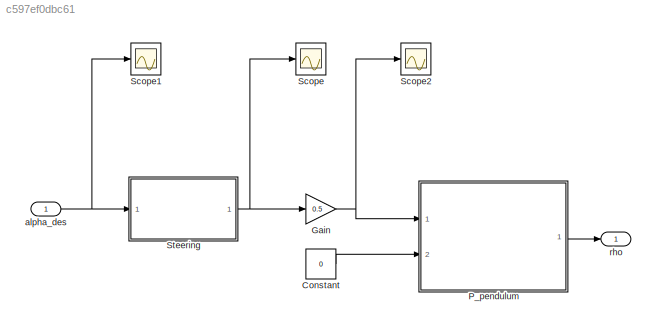
MODEL slx_c597ef0dbc61
KIND model
BLOCK [Constant] Constant
  Value = 0
BLOCK [Gain] Gain
  Gain = 0.5
  OutDataTypeStr = Inherit: Inherit via internal rule
  ParamDataTypeStr = Inherit: Inherit via internal rule
  SaturateOnIntegerOverflow = off
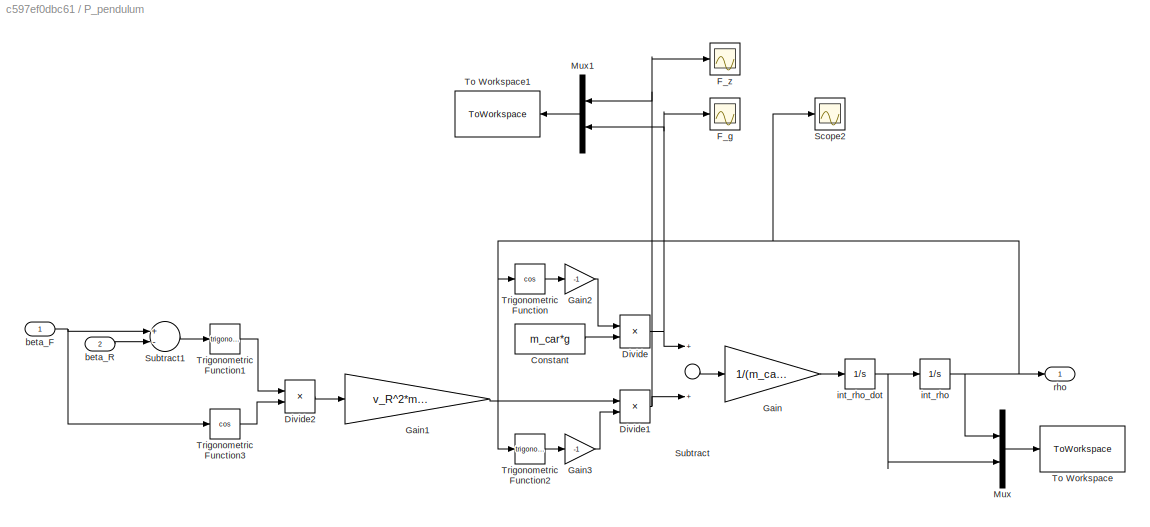
BLOCK [SubSystem] P_pendulum
  FunctionWithSeparateData = off
  MaskHideContents = off
  MinAlgLoopOccurrences = off
  Opaque = off
  Ports = [2, 1]
  PropExecContextOutsideSubsystem = off
  RTWSystemCode = Auto
  RequestExecContextInheritance = off
BLOCK [Constant] P_pendulum/Constant
  Value = m_car*g
BLOCK [Product] P_pendulum/Divide
  InputSameDT = off
  Inputs = **
  OutDataTypeStr = Inherit: Inherit via internal rule
  Ports = [2, 1]
  RndMeth = Floor
  SaturateOnIntegerOverflow = off
BLOCK [Product] P_pendulum/Divide1
  InputSameDT = off
  Inputs = **
  OutDataTypeStr = Inherit: Inherit via internal rule
  Ports = [2, 1]
  RndMeth = Floor
  SaturateOnIntegerOverflow = off
BLOCK [Product] P_pendulum/Divide2
  InputSameDT = off
  Inputs = */
  OutDataTypeStr = Inherit: Inherit via internal rule
  Ports = [2, 1]
  RndMeth = Floor
  SaturateOnIntegerOverflow = off
BLOCK [Scope] P_pendulum/F_g
  DataFormat = StructureWithTime
  Floating = off
  NumInputPorts = 1
  Ports = [1]
  SampleTime = 0
  SaveName = ScopeData2
  ShowLegends = off
BLOCK [Scope] P_pendulum/F_z
  DataFormat = StructureWithTime
  Floating = off
  NumInputPorts = 1
  Ports = [1]
  SampleTime = 0
  SaveName = ScopeData1
  ShowLegends = off
BLOCK [Gain] P_pendulum/Gain
  Gain = 1/(m_car*l_p)
  OutDataTypeStr = Inherit: Inherit via internal rule
  ParamDataTypeStr = Inherit: Inherit via internal rule
  SaturateOnIntegerOverflow = off
BLOCK [Gain] P_pendulum/Gain1
  Gain = v_R^2*m_car/l_w
  OutDataTypeStr = Inherit: Inherit via internal rule
  ParamDataTypeStr = Inherit: Inherit via internal rule
  SaturateOnIntegerOverflow = off
BLOCK [Gain] P_pendulum/Gain2
  Gain = -1
  OutDataTypeStr = Inherit: Inherit via internal rule
  ParamDataTypeStr = Inherit: Inherit via internal rule
  SaturateOnIntegerOverflow = off
BLOCK [Gain] P_pendulum/Gain3
  Gain = -1
  OutDataTypeStr = Inherit: Inherit via internal rule
  ParamDataTypeStr = Inherit: Inherit via internal rule
  SaturateOnIntegerOverflow = off
BLOCK [Mux] P_pendulum/Mux
  DisplayOption = bar
  Inputs = 2
  Ports = [2, 1]
BLOCK [Mux] P_pendulum/Mux1
  DisplayOption = bar
  Inputs = 2
  Ports = [2, 1]
BLOCK [Scope] P_pendulum/Scope2
  DataFormat = StructureWithTime
  Floating = off
  NumInputPorts = 1
  Ports = [1]
  SampleTime = 0
  SaveName = ScopeData3
  ShowLegends = off
BLOCK [Sum] P_pendulum/Subtract
  InputSameDT = off
  OutDataTypeStr = Inherit: Inherit via internal rule
  Ports = [2, 1]
  SaturateOnIntegerOverflow = off
BLOCK [Sum] P_pendulum/Subtract1
  InputSameDT = off
  Inputs = +-
  OutDataTypeStr = Inherit: Inherit via internal rule
  Ports = [2, 1]
  SaturateOnIntegerOverflow = off
BLOCK [ToWorkspace] P_pendulum/To Workspace
  MaxDataPoints = inf
  Ports = [1]
  SampleTime = -1
  SaveFormat = Timeseries
  VariableName = rho
BLOCK [ToWorkspace] P_pendulum/To Workspace1
  MaxDataPoints = inf
  Ports = [1]
  SampleTime = -1
  SaveFormat = Timeseries
  VariableName = forces
BLOCK [Trigonometry] P_pendulum/Trigonometric Function
  Operator = cos
  Ports = [1, 1]
BLOCK [Trigonometry] P_pendulum/Trigonometric Function1
  Ports = [1, 1]
BLOCK [Trigonometry] P_pendulum/Trigonometric Function2
  Ports = [1, 1]
BLOCK [Trigonometry] P_pendulum/Trigonometric Function3
  Operator = cos
  Ports = [1, 1]
BLOCK [Inport] P_pendulum/beta_F
  IconDisplay = Port number
BLOCK [Inport] P_pendulum/beta_R
  IconDisplay = Port number
  Port = 2
BLOCK [Integrator] P_pendulum/int_rho
  ContinuousStateAttributes = 'rho'
  InitialCondition = pi/2+0.01
  Ports = [1, 1]
BLOCK [Integrator] P_pendulum/int_rho_dot
  ContinuousStateAttributes = 'rho_dot'
  Ports = [1, 1]
BLOCK [Outport] P_pendulum/rho
  IconDisplay = Port number
BLOCK [Scope] Scope
  DataFormat = StructureWithTime
  Floating = off
  NumInputPorts = 1
  Ports = [1]
  SampleTime = 0
  ShowLegends = off
BLOCK [Scope] Scope1
  DataFormat = StructureWithTime
  Floating = off
  NumInputPorts = 1
  Ports = [1]
  SampleTime = 0
  SaveName = ScopeData4
  ShowLegends = off
BLOCK [Scope] Scope2
  DataFormat = StructureWithTime
  Floating = off
  NumInputPorts = 1
  Ports = [1]
  SampleTime = 0
  SaveName = ScopeData5
  ShowLegends = off
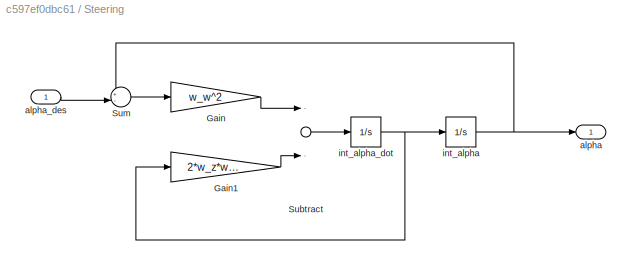
BLOCK [SubSystem] Steering
  FunctionWithSeparateData = off
  MaskHideContents = off
  MinAlgLoopOccurrences = off
  Opaque = off
  Ports = [1, 1]
  PropExecContextOutsideSubsystem = off
  RTWSystemCode = Auto
  RequestExecContextInheritance = off
BLOCK [Gain] Steering/Gain
  Gain = w_w^2
  OutDataTypeStr = Inherit: Inherit via internal rule
  ParamDataTypeStr = Inherit: Inherit via internal rule
  SaturateOnIntegerOverflow = off
BLOCK [Gain] Steering/Gain1
  Gain = 2*w_z*w_w
  OutDataTypeStr = Inherit: Inherit via internal rule
  ParamDataTypeStr = Inherit: Inherit via internal rule
  SaturateOnIntegerOverflow = off
BLOCK [Sum] Steering/Subtract
  InputSameDT = off
  Inputs = --
  OutDataTypeStr = Inherit: Inherit via internal rule
  Ports = [2, 1]
  SaturateOnIntegerOverflow = off
BLOCK [Sum] Steering/Sum
  IconShape = round
  InputSameDT = off
  Inputs = +-|
  OutDataTypeStr = Inherit: Inherit via internal rule
  Ports = [2, 1]
  SaturateOnIntegerOverflow = off
BLOCK [Outport] Steering/alpha
  IconDisplay = Port number
BLOCK [Inport] Steering/alpha_des
  IconDisplay = Port number
BLOCK [Integrator] Steering/int_alpha
  Ports = [1, 1]
BLOCK [Integrator] Steering/int_alpha_dot
  Ports = [1, 1]
BLOCK [Inport] alpha_des
  IconDisplay = Port number
BLOCK [Outport] rho
  IconDisplay = Port number
LINE Constant:1 -> P_pendulum:2
NET Gain:1 -> P_pendulum:1, Scope2:1
LINE P_pendulum/Constant:1 -> P_pendulum/Divide:2
NET P_pendulum/Divide1:1 -> P_pendulum/F_z:1, P_pendulum/Mux1:1, P_pendulum/Subtract:2
LINE P_pendulum/Divide2:1 -> P_pendulum/Gain1:1
NET P_pendulum/Divide:1 -> P_pendulum/F_g:1, P_pendulum/Mux1:2, P_pendulum/Subtract:1
LINE P_pendulum/Gain1:1 -> P_pendulum/Divide1:1
LINE P_pendulum/Gain2:1 -> P_pendulum/Divide:1
LINE P_pendulum/Gain3:1 -> P_pendulum/Divide1:2
LINE P_pendulum/Gain:1 -> P_pendulum/int_rho_dot:1
LINE P_pendulum/Mux1:1 -> P_pendulum/To Workspace1:1
LINE P_pendulum/Mux:1 -> P_pendulum/To Workspace:1
LINE P_pendulum/Subtract1:1 -> P_pendulum/Trigonometric Function1:1
LINE P_pendulum/Subtract:1 -> P_pendulum/Gain:1
LINE P_pendulum/Trigonometric Function1:1 -> P_pendulum/Divide2:1
LINE P_pendulum/Trigonometric Function2:1 -> P_pendulum/Gain3:1
LINE P_pendulum/Trigonometric Function3:1 -> P_pendulum/Divide2:2
LINE P_pendulum/Trigonometric Function:1 -> P_pendulum/Gain2:1
NET P_pendulum/beta_F:1 -> P_pendulum/Subtract1:1, P_pendulum/Trigonometric Function3:1
LINE P_pendulum/beta_R:1 -> P_pendulum/Subtract1:2
NET P_pendulum/int_rho:1 -> P_pendulum/Mux:1, P_pendulum/Scope2:1, P_pendulum/Trigonometric Function2:1, P_pendulum/Trigonometric Function:1, P_pendulum/rho:1
NET P_pendulum/int_rho_dot:1 -> P_pendulum/Mux:2, P_pendulum/int_rho:1
LINE P_pendulum:1 -> rho:1
LINE Steering/Gain1:1 -> Steering/Subtract:2
LINE Steering/Gain:1 -> Steering/Subtract:1
LINE Steering/Subtract:1 -> Steering/int_alpha_dot:1
LINE Steering/Sum:1 -> Steering/Gain:1
LINE Steering/alpha_des:1 -> Steering/Sum:2
NET Steering/int_alpha:1 -> Steering/Sum:1, Steering/alpha:1
NET Steering/int_alpha_dot:1 -> Steering/Gain1:1, Steering/int_alpha:1
NET Steering:1 -> Gain:1, Scope:1
NET alpha_des:1 -> Scope1:1, Steering:1
note: NET lines group one-source signal fan-out (src -> all destinations, sorted); 1:1 wires keep LINE
